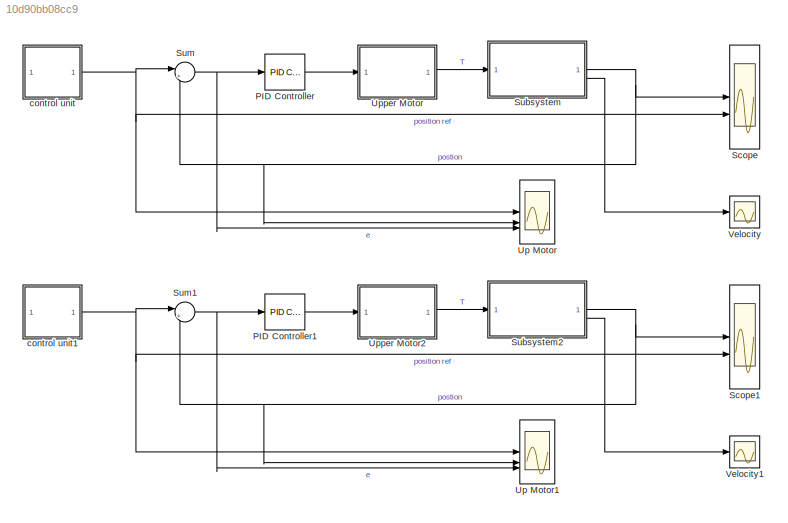
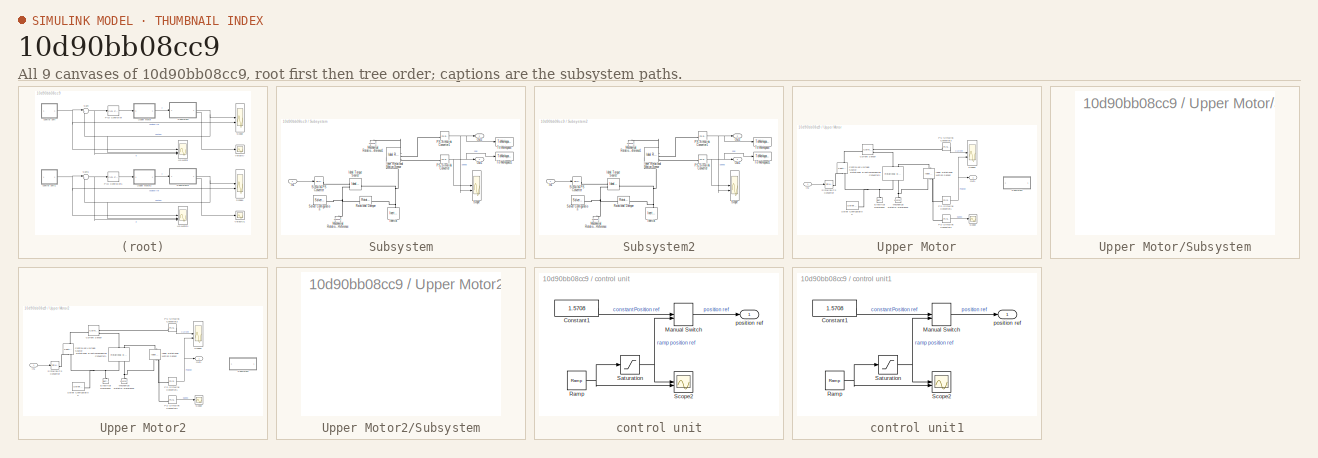
[diagram: thumbnail index - all 9 canvases of the model, root first then tree order]
MODEL slx_10d90bb08cc9
KIND model
CONFIG AbsTol = auto
CONFIG EnableMultiTasking = off
CONFIG FixedStep = auto
CONFIG MaxStep = auto
CONFIG MinStep = auto
CONFIG RelTol = 1e-3
CONFIG SampleTimeConstraint = Unconstrained
CONFIG SolverName = VariableStepAuto
CONFIG StartTime = 0.0
CONFIG StopTime = 27
BLOCK [Reference] PID Controller  REF=slpidlib/PID Controller
  SourceBlock = slpidlib/PID Controller
  SourceType = PID 1dof
BLOCK [Reference] PID Controller1  REF=slpidlib/PID Controller
  SourceBlock = slpidlib/PID Controller
  SourceType = PID 1dof
BLOCK [Scope] Scope
  Floating = off
  NumInputPorts = 2
  ScopeSpecificationString = Simulink.scopes.TimeScopeBlockCfg('CurrentConfiguration', extmgr.ConfigurationSet(extmgr.Configuration('Core','General UI',true),extmgr.Configuration('Core','Source UI',true),extmgr.Configuration('Sources','WiredSimulink',true,'DataLoggingVariableName','ScopeData1'),extmgr.Configuration('Visuals','Time Domain',true,'SerializedDisplays',{struct('MinYLimReal','-0.21635','MaxYLimReal','1.94711','YLab...<+1407ch>
BLOCK [Scope] Scope1
  Floating = off
  NumInputPorts = 2
  ScopeSpecificationString = Simulink.scopes.TimeScopeBlockCfg('CurrentConfiguration', extmgr.ConfigurationSet(extmgr.Configuration('Core','General UI',true),extmgr.Configuration('Core','Source UI',true),extmgr.Configuration('Sources','WiredSimulink',true,'DataLoggingVariableName','ScopeData1'),extmgr.Configuration('Visuals','Time Domain',true,'SerializedDisplays',{struct('MinYLimReal','-0.26968','MaxYLimReal','2.42708','YLab...<+1407ch>
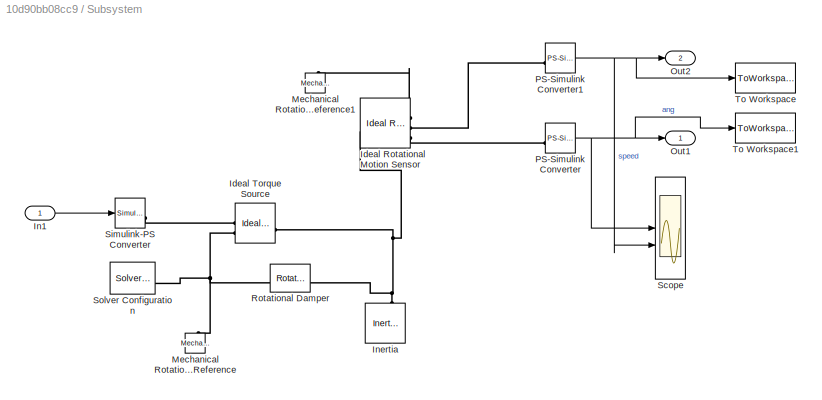
BLOCK [SubSystem] Subsystem
BLOCK [Reference] Subsystem/Ideal Rotational Motion Sensor  REF=fl_lib/Mechanical/Mechanical Sensors/Ideal Rotational
Motion Sensor
  SourceBlock = fl_lib/Mechanical/Mechanical Sensors/Ideal Rotational\nMotion Sensor
  SourceType = Ideal Rotational\nMotion Sensor
BLOCK [Reference] Subsystem/Ideal Torque Source  REF=fl_lib/Mechanical/Mechanical Sources/Ideal Torque Source
  SourceBlock = fl_lib/Mechanical/Mechanical Sources/Ideal Torque Source
  SourceType = Ideal Torque Source
BLOCK [Inport] Subsystem/In1
BLOCK [Reference] Subsystem/Inertia  REF=fl_lib/Mechanical/Rotational Elements/Inertia
  NameLocation = right
  SourceBlock = fl_lib/Mechanical/Rotational Elements/Inertia
  SourceType = Inertia
BLOCK [Reference] Subsystem/Mechanical Rotational Reference  REF=fl_lib/Mechanical/Rotational Elements/Mechanical
Rotational Reference
  NameLocation = right
  SourceBlock = fl_lib/Mechanical/Rotational Elements/Mechanical\nRotational Reference
  SourceType = Mechanical\nRotational Reference
BLOCK [Reference] Subsystem/Mechanical Rotational Reference1  REF=fl_lib/Mechanical/Rotational Elements/Mechanical
Rotational Reference
  NameLocation = right
  SourceBlock = fl_lib/Mechanical/Rotational Elements/Mechanical\nRotational Reference
  SourceType = Mechanical\nRotational Reference
BLOCK [Outport] Subsystem/Out1
  VectorParamsAs1DForOutWhenUnconnected = off
BLOCK [Outport] Subsystem/Out2
  Port = 2
  VectorParamsAs1DForOutWhenUnconnected = off
BLOCK [Reference] Subsystem/PS-Simulink Converter  REF=nesl_utility/PS-Simulink
Converter
  SourceBlock = nesl_utility/PS-Simulink\nConverter
  SourceType = PS-Simulink\nConverter
BLOCK [Reference] Subsystem/PS-Simulink Converter1  REF=nesl_utility/PS-Simulink
Converter
  SourceBlock = nesl_utility/PS-Simulink\nConverter
  SourceType = PS-Simulink\nConverter
BLOCK [Reference] Subsystem/Rotational Damper  REF=fl_lib/Mechanical/Rotational Elements/Rotational Damper
  SourceBlock = fl_lib/Mechanical/Rotational Elements/Rotational Damper
  SourceType = Rotational Damper
BLOCK [Scope] Subsystem/Scope
  Floating = off
  NumInputPorts = 2
  ScopeSpecificationString = Simulink.scopes.TimeScopeBlockCfg('CurrentConfiguration', extmgr.ConfigurationSet(extmgr.Configuration('Core','General UI',true),extmgr.Configuration('Core','Source UI',true),extmgr.Configuration('Sources','WiredSimulink',true),extmgr.Configuration('Visuals','Time Domain',true,'SerializedDisplays',{struct('MinYLimReal','-0.32852','MaxYLimReal','1.95957','YLabelReal','','MinYLimMag','0.00000','MaxY...<+1360ch>
BLOCK [Reference] Subsystem/Simulink-PS Converter  REF=nesl_utility/Simulink-PS
Converter
  SourceBlock = nesl_utility/Simulink-PS\nConverter
  SourceType = Simulink-PS\nConverter
BLOCK [Reference] Subsystem/Solver Configuration  REF=nesl_utility/Solver
Configuration
  SourceBlock = nesl_utility/Solver\nConfiguration
  SourceType = Solver\nConfiguration
BLOCK [ToWorkspace] Subsystem/To Workspace
  FixptAsFi = on
  MaxDataPoints = inf
  SampleTime = -1
  SaveFormat = Timeseries
  VariableName = vel1
BLOCK [ToWorkspace] Subsystem/To Workspace1
  FixptAsFi = on
  MaxDataPoints = inf
  SampleTime = -1
  SaveFormat = Timeseries
  VariableName = theta1
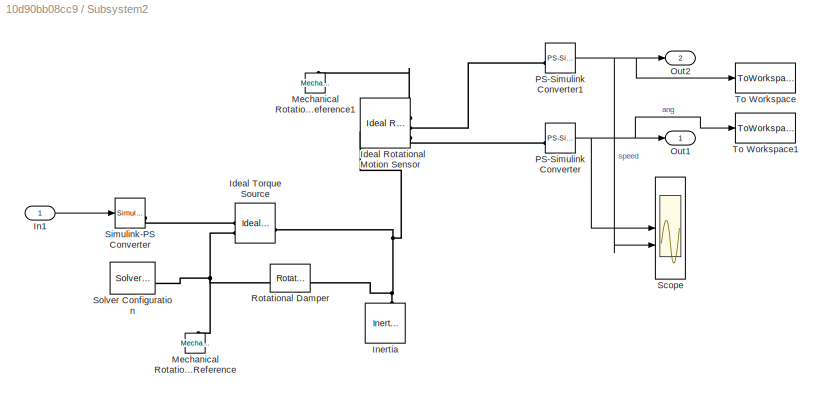
BLOCK [SubSystem] Subsystem2
BLOCK [Reference] Subsystem2/Ideal Rotational Motion Sensor  REF=fl_lib/Mechanical/Mechanical Sensors/Ideal Rotational
Motion Sensor
  SourceBlock = fl_lib/Mechanical/Mechanical Sensors/Ideal Rotational\nMotion Sensor
  SourceType = Ideal Rotational\nMotion Sensor
BLOCK [Reference] Subsystem2/Ideal Torque Source  REF=fl_lib/Mechanical/Mechanical Sources/Ideal Torque Source
  SourceBlock = fl_lib/Mechanical/Mechanical Sources/Ideal Torque Source
  SourceType = Ideal Torque Source
BLOCK [Inport] Subsystem2/In1
BLOCK [Reference] Subsystem2/Inertia  REF=fl_lib/Mechanical/Rotational Elements/Inertia
  NameLocation = right
  SourceBlock = fl_lib/Mechanical/Rotational Elements/Inertia
  SourceType = Inertia
BLOCK [Reference] Subsystem2/Mechanical Rotational Reference  REF=fl_lib/Mechanical/Rotational Elements/Mechanical
Rotational Reference
  NameLocation = right
  SourceBlock = fl_lib/Mechanical/Rotational Elements/Mechanical\nRotational Reference
  SourceType = Mechanical\nRotational Reference
BLOCK [Reference] Subsystem2/Mechanical Rotational Reference1  REF=fl_lib/Mechanical/Rotational Elements/Mechanical
Rotational Reference
  NameLocation = right
  SourceBlock = fl_lib/Mechanical/Rotational Elements/Mechanical\nRotational Reference
  SourceType = Mechanical\nRotational Reference
BLOCK [Outport] Subsystem2/Out1
  VectorParamsAs1DForOutWhenUnconnected = off
BLOCK [Outport] Subsystem2/Out2
  Port = 2
  VectorParamsAs1DForOutWhenUnconnected = off
BLOCK [Reference] Subsystem2/PS-Simulink Converter  REF=nesl_utility/PS-Simulink
Converter
  SourceBlock = nesl_utility/PS-Simulink\nConverter
  SourceType = PS-Simulink\nConverter
BLOCK [Reference] Subsystem2/PS-Simulink Converter1  REF=nesl_utility/PS-Simulink
Converter
  SourceBlock = nesl_utility/PS-Simulink\nConverter
  SourceType = PS-Simulink\nConverter
BLOCK [Reference] Subsystem2/Rotational Damper  REF=fl_lib/Mechanical/Rotational Elements/Rotational Damper
  SourceBlock = fl_lib/Mechanical/Rotational Elements/Rotational Damper
  SourceType = Rotational Damper
BLOCK [Scope] Subsystem2/Scope
  Floating = off
  NumInputPorts = 2
  ScopeSpecificationString = Simulink.scopes.TimeScopeBlockCfg('CurrentConfiguration', extmgr.ConfigurationSet(extmgr.Configuration('Core','General UI',true),extmgr.Configuration('Core','Source UI',true),extmgr.Configuration('Sources','WiredSimulink',true),extmgr.Configuration('Visuals','Time Domain',true,'SerializedDisplays',{struct('MinYLimReal','-0.26455','MaxYLimReal','1.98734','YLabelReal','','MinYLimMag','0.00000','MaxY...<+1361ch>
BLOCK [Reference] Subsystem2/Simulink-PS Converter  REF=nesl_utility/Simulink-PS
Converter
  SourceBlock = nesl_utility/Simulink-PS\nConverter
  SourceType = Simulink-PS\nConverter
BLOCK [Reference] Subsystem2/Solver Configuration  REF=nesl_utility/Solver
Configuration
  SourceBlock = nesl_utility/Solver\nConfiguration
  SourceType = Solver\nConfiguration
BLOCK [ToWorkspace] Subsystem2/To Workspace
  FixptAsFi = on
  MaxDataPoints = inf
  SampleTime = -1
  SaveFormat = Timeseries
  VariableName = vel2
BLOCK [ToWorkspace] Subsystem2/To Workspace1
  FixptAsFi = on
  MaxDataPoints = inf
  SampleTime = -1
  SaveFormat = Timeseries
  VariableName = theta2
BLOCK [Sum] Sum
  Inputs = |+-
BLOCK [Sum] Sum1
  Inputs = |+-
BLOCK [Scope] Up Motor
  Floating = off
  NumInputPorts = 3
  ScopeSpecificationString = Simulink.scopes.TimeScopeBlockCfg('CurrentConfiguration', extmgr.ConfigurationSet(extmgr.Configuration('Core','General UI',true),extmgr.Configuration('Core','Source UI',true),extmgr.Configuration('Sources','WiredSimulink',true,'DataLoggingVariableName','ScopeData2'),extmgr.Configuration('Visuals','Time Domain',true,'SerializedDisplays',{struct('MinYLimReal','-0.79533','MaxYLimReal','2.36613','YLab...<+1411ch>
BLOCK [Scope] Up Motor1
  Floating = off
  NumInputPorts = 3
  ScopeSpecificationString = Simulink.scopes.TimeScopeBlockCfg('CurrentConfiguration', extmgr.ConfigurationSet(extmgr.Configuration('Core','General UI',true),extmgr.Configuration('Core','Source UI',true),extmgr.Configuration('Sources','WiredSimulink',true,'DataLoggingVariableName','ScopeData2'),extmgr.Configuration('Visuals','Time Domain',true,'SerializedDisplays',{struct('MinYLimReal','-0.9296','MaxYLimReal','2.5004','YLabel...<+1405ch>
BLOCK [SubSystem] Upper Motor
BLOCK [Reference] Upper Motor/Controlled Voltage Source  REF=fl_lib/Electrical/Electrical Sources/Controlled Voltage
Source
  NameLocation = right
  SourceBlock = fl_lib/Electrical/Electrical Sources/Controlled Voltage\nSource
  SourceType = Controlled Voltage\nSource
BLOCK [Reference] Upper Motor/Current Sensor  REF=fl_lib/Electrical/Electrical Sensors/Current Sensor
  SourceBlock = fl_lib/Electrical/Electrical Sensors/Current Sensor
  SourceType = Current Sensor
BLOCK [Reference] Upper Motor/Electrical Reference  REF=fl_lib/Electrical/Electrical Elements/Electrical Reference
  NameLocation = right
  SourceBlock = fl_lib/Electrical/Electrical Elements/Electrical Reference
  SourceType = Electrical Reference
BLOCK [Reference] Upper Motor/Ideal Rotational Motion Sensor  REF=fl_lib/Mechanical/Mechanical Sensors/Ideal Rotational
Motion Sensor
  NameLocation = left
  SourceBlock = fl_lib/Mechanical/Mechanical Sensors/Ideal Rotational\nMotion Sensor
  SourceType = Ideal Rotational\nMotion Sensor
BLOCK [Inport] Upper Motor/In1
BLOCK [Reference] Upper Motor/Mechanical Rotational Reference  REF=fl_lib/Mechanical/Rotational Elements/Mechanical
Rotational Reference
  NameLocation = right
  SourceBlock = fl_lib/Mechanical/Rotational Elements/Mechanical\nRotational Reference
  SourceType = Mechanical\nRotational Reference
BLOCK [Outport] Upper Motor/Out1
  VectorParamsAs1DForOutWhenUnconnected = off
BLOCK [Reference] Upper Motor/PS-Simulink Converter1  REF=nesl_utility/PS-Simulink
Converter
  SourceBlock = nesl_utility/PS-Simulink\nConverter
  SourceType = PS-Simulink\nConverter
BLOCK [Reference] Upper Motor/PS-Simulink Converter2  REF=nesl_utility/PS-Simulink
Converter
  SourceBlock = nesl_utility/PS-Simulink\nConverter
  SourceType = PS-Simulink\nConverter
BLOCK [Reference] Upper Motor/PS-Simulink Converter3  REF=nesl_utility/PS-Simulink
Converter
  SourceBlock = nesl_utility/PS-Simulink\nConverter
  SourceType = PS-Simulink\nConverter
BLOCK [Reference] Upper Motor/Rotational Electromechanical Converter1  REF=fl_lib/Electrical/Electrical Elements/Rotational
Electromechanical
Converter
  NameLocation = right
  SourceBlock = fl_lib/Electrical/Electrical Elements/Rotational\nElectromechanical\nConverter
  SourceType = Rotational\nElectromechanical\nConverter
BLOCK [Scope] Upper Motor/Scope
  Floating = off
  NumInputPorts = 1
  ScopeSpecificationString = Simulink.scopes.TimeScopeBlockCfg('CurrentConfiguration', extmgr.ConfigurationSet(extmgr.Configuration('Core','General UI',true),extmgr.Configuration('Core','Source UI',true),extmgr.Configuration('Sources','WiredSimulink',true,'DataLoggingVariableName','ScopeData1'),extmgr.Configuration('Visuals','Time Domain',true,'SerializedDisplays',{struct('MinYLimReal','-3090.84958','MaxYLimReal','26337.95028...<+1390ch>
BLOCK [Scope] Upper Motor/Scope2
  Floating = off
  NumInputPorts = 2
  ScopeSpecificationString = Simulink.scopes.TimeScopeBlockCfg('CurrentConfiguration', extmgr.ConfigurationSet(extmgr.Configuration('Core','General UI',true),extmgr.Configuration('Core','Source UI',true),extmgr.Configuration('Sources','WiredSimulink',true,'DataLoggingVariableName','ScopeData2'),extmgr.Configuration('Visuals','Time Domain',true,'SerializedDisplays',{struct('MinYLimReal','-78.78746','MaxYLimReal','166.13849','Y...<+1414ch>
BLOCK [Reference] Upper Motor/Simulink-PS Converter  REF=nesl_utility/Simulink-PS
Converter
  SourceBlock = nesl_utility/Simulink-PS\nConverter
  SourceType = Simulink-PS\nConverter
BLOCK [Reference] Upper Motor/Solver Configuration  REF=nesl_utility/Solver
Configuration
  SourceBlock = nesl_utility/Solver\nConfiguration
  SourceType = Solver\nConfiguration
BLOCK [SubSystem] Upper Motor/Subsystem
  OpenFcn = open_system('simscape')
  ShowPortLabels = none
BLOCK [SubSystem] Upper Motor2
BLOCK [Reference] Upper Motor2/Controlled Voltage Source  REF=fl_lib/Electrical/Electrical Sources/Controlled Voltage
Source
  NameLocation = right
  SourceBlock = fl_lib/Electrical/Electrical Sources/Controlled Voltage\nSource
  SourceType = Controlled Voltage\nSource
BLOCK [Reference] Upper Motor2/Current Sensor  REF=fl_lib/Electrical/Electrical Sensors/Current Sensor
  SourceBlock = fl_lib/Electrical/Electrical Sensors/Current Sensor
  SourceType = Current Sensor
BLOCK [Reference] Upper Motor2/Electrical Reference  REF=fl_lib/Electrical/Electrical Elements/Electrical Reference
  NameLocation = right
  SourceBlock = fl_lib/Electrical/Electrical Elements/Electrical Reference
  SourceType = Electrical Reference
BLOCK [Reference] Upper Motor2/Ideal Rotational Motion Sensor  REF=fl_lib/Mechanical/Mechanical Sensors/Ideal Rotational
Motion Sensor
  NameLocation = left
  SourceBlock = fl_lib/Mechanical/Mechanical Sensors/Ideal Rotational\nMotion Sensor
  SourceType = Ideal Rotational\nMotion Sensor
BLOCK [Inport] Upper Motor2/In1
BLOCK [Reference] Upper Motor2/Mechanical Rotational Reference  REF=fl_lib/Mechanical/Rotational Elements/Mechanical
Rotational Reference
  NameLocation = right
  SourceBlock = fl_lib/Mechanical/Rotational Elements/Mechanical\nRotational Reference
  SourceType = Mechanical\nRotational Reference
BLOCK [Outport] Upper Motor2/Out1
  VectorParamsAs1DForOutWhenUnconnected = off
BLOCK [Reference] Upper Motor2/PS-Simulink Converter1  REF=nesl_utility/PS-Simulink
Converter
  SourceBlock = nesl_utility/PS-Simulink\nConverter
  SourceType = PS-Simulink\nConverter
BLOCK [Reference] Upper Motor2/PS-Simulink Converter2  REF=nesl_utility/PS-Simulink
Converter
  SourceBlock = nesl_utility/PS-Simulink\nConverter
  SourceType = PS-Simulink\nConverter
BLOCK [Reference] Upper Motor2/PS-Simulink Converter3  REF=nesl_utility/PS-Simulink
Converter
  SourceBlock = nesl_utility/PS-Simulink\nConverter
  SourceType = PS-Simulink\nConverter
BLOCK [Reference] Upper Motor2/Rotational Electromechanical Converter1  REF=fl_lib/Electrical/Electrical Elements/Rotational
Electromechanical
Converter
  NameLocation = right
  SourceBlock = fl_lib/Electrical/Electrical Elements/Rotational\nElectromechanical\nConverter
  SourceType = Rotational\nElectromechanical\nConverter
BLOCK [Scope] Upper Motor2/Scope
  Floating = off
  NumInputPorts = 1
  ScopeSpecificationString = Simulink.scopes.TimeScopeBlockCfg('CurrentConfiguration', extmgr.ConfigurationSet(extmgr.Configuration('Core','General UI',true),extmgr.Configuration('Core','Source UI',true),extmgr.Configuration('Sources','WiredSimulink',true,'DataLoggingVariableName','ScopeData1'),extmgr.Configuration('Visuals','Time Domain',true,'SerializedDisplays',{struct('MinYLimReal','-3090.84958','MaxYLimReal','26337.95028...<+1390ch>
BLOCK [Scope] Upper Motor2/Scope2
  Floating = off
  NumInputPorts = 2
  ScopeSpecificationString = Simulink.scopes.TimeScopeBlockCfg('CurrentConfiguration', extmgr.ConfigurationSet(extmgr.Configuration('Core','General UI',true),extmgr.Configuration('Core','Source UI',true),extmgr.Configuration('Sources','WiredSimulink',true,'DataLoggingVariableName','ScopeData2'),extmgr.Configuration('Visuals','Time Domain',true,'SerializedDisplays',{struct('MinYLimReal','-78.78746','MaxYLimReal','166.13849','Y...<+1414ch>
BLOCK [Reference] Upper Motor2/Simulink-PS Converter  REF=nesl_utility/Simulink-PS
Converter
  SourceBlock = nesl_utility/Simulink-PS\nConverter
  SourceType = Simulink-PS\nConverter
BLOCK [Reference] Upper Motor2/Solver Configuration  REF=nesl_utility/Solver
Configuration
  SourceBlock = nesl_utility/Solver\nConfiguration
  SourceType = Solver\nConfiguration
BLOCK [SubSystem] Upper Motor2/Subsystem
  OpenFcn = open_system('simscape')
  ShowPortLabels = none
BLOCK [Scope] Velocity
  Floating = off
  NumInputPorts = 1
  ScopeSpecificationString = Simulink.scopes.TimeScopeBlockCfg('CurrentConfiguration', extmgr.ConfigurationSet(extmgr.Configuration('Core','General UI',true),extmgr.Configuration('Core','Source UI',true),extmgr.Configuration('Sources','WiredSimulink',true,'DataLoggingVariableName','ScopeData3'),extmgr.Configuration('Visuals','Time Domain',true,'SerializedDisplays',{struct('MinYLimReal','-0.00879','MaxYLimReal','0.02298','YLab...<+1374ch>
BLOCK [Scope] Velocity1
  Floating = off
  NumInputPorts = 1
  ScopeSpecificationString = Simulink.scopes.TimeScopeBlockCfg('CurrentConfiguration', extmgr.ConfigurationSet(extmgr.Configuration('Core','General UI',true),extmgr.Configuration('Core','Source UI',true),extmgr.Configuration('Sources','WiredSimulink',true,'DataLoggingVariableName','ScopeData3'),extmgr.Configuration('Visuals','Time Domain',true,'SerializedDisplays',{struct('MinYLimReal','-0.00879','MaxYLimReal','0.02298','YLab...<+1374ch>
BLOCK [SubSystem] control unit
BLOCK [Constant] control unit/Constant1
  Value = 1.5708
BLOCK [ManualSwitch] control unit/Manual Switch
BLOCK [Reference] control unit/Ramp  REF=simulink/Sources/Ramp
  SourceBlock = simulink/Sources/Ramp
  SourceType = Ramp
BLOCK [Saturate] control unit/Saturation
  LowerLimit = 0.5
  UpperLimit = 1.5
BLOCK [Scope] control unit/Scope2
  Floating = off
  NumInputPorts = 2
  ScopeSpecificationString = Simulink.scopes.TimeScopeBlockCfg('CurrentConfiguration', extmgr.ConfigurationSet(extmgr.Configuration('Core','General UI',true),extmgr.Configuration('Core','Source UI',true),extmgr.Configuration('Sources','WiredSimulink',true,'DataLoggingVariableName','ScopeData1'),extmgr.Configuration('Visuals','Time Domain',true,'SerializedDisplays',{struct('MinYLimReal','-1.21875','MaxYLimReal','10.96875','YLa...<+1459ch>
BLOCK [Outport] control unit/position ref
  VectorParamsAs1DForOutWhenUnconnected = off
BLOCK [SubSystem] control unit1
BLOCK [Constant] control unit1/Constant1
  Value = 1.5708
BLOCK [ManualSwitch] control unit1/Manual Switch
BLOCK [Reference] control unit1/Ramp  REF=simulink/Sources/Ramp
  SourceBlock = simulink/Sources/Ramp
  SourceType = Ramp
BLOCK [Saturate] control unit1/Saturation
  LowerLimit = 0.5
  UpperLimit = 1.5
BLOCK [Scope] control unit1/Scope2
  Floating = off
  NumInputPorts = 2
  ScopeSpecificationString = Simulink.scopes.TimeScopeBlockCfg('CurrentConfiguration', extmgr.ConfigurationSet(extmgr.Configuration('Core','General UI',true),extmgr.Configuration('Core','Source UI',true),extmgr.Configuration('Sources','WiredSimulink',true,'DataLoggingVariableName','ScopeData1'),extmgr.Configuration('Visuals','Time Domain',true,'SerializedDisplays',{struct('MinYLimReal','-1.21875','MaxYLimReal','10.96875','YLa...<+1459ch>
BLOCK [Outport] control unit1/position ref
  VectorParamsAs1DForOutWhenUnconnected = off
LINE PID Controller1:1 -> Upper Motor2:1
LINE PID Controller:1 -> Upper Motor:1
LINE Subsystem/In1:1 -> Subsystem/Simulink-PS Converter:1
NET Subsystem/PS-Simulink Converter1:1 -> Subsystem/Out2:1, Subsystem/Scope:2, Subsystem/To Workspace:1
NET Subsystem/PS-Simulink Converter:1 -> Subsystem/Out1:1, Subsystem/Scope:1, Subsystem/To Workspace1:1
LINE Subsystem2/In1:1 -> Subsystem2/Simulink-PS Converter:1
NET Subsystem2/PS-Simulink Converter1:1 -> Subsystem2/Out2:1, Subsystem2/Scope:2, Subsystem2/To Workspace:1
NET Subsystem2/PS-Simulink Converter:1 -> Subsystem2/Out1:1, Subsystem2/Scope:1, Subsystem2/To Workspace1:1
NET Subsystem2:1 -> Scope1:1, Sum1:2, Up Motor1:2
LINE Subsystem2:2 -> Velocity1:1
NET Subsystem:1 -> Scope:1, Sum:2, Up Motor:2
LINE Subsystem:2 -> Velocity:1
NET Sum1:1 -> PID Controller1:1, Up Motor1:3
NET Sum:1 -> PID Controller:1, Up Motor:3
LINE Upper Motor/In1:1 -> Upper Motor/Simulink-PS Converter:1
NET Upper Motor/PS-Simulink Converter1:1 -> Upper Motor/Out1:1, Upper Motor/Scope2:2
LINE Upper Motor/PS-Simulink Converter2:1 -> Upper Motor/Scope:1
LINE Upper Motor/PS-Simulink Converter3:1 -> Upper Motor/Scope2:1
LINE Upper Motor2/In1:1 -> Upper Motor2/Simulink-PS Converter:1
NET Upper Motor2/PS-Simulink Converter1:1 -> Upper Motor2/Out1:1, Upper Motor2/Scope2:2
LINE Upper Motor2/PS-Simulink Converter2:1 -> Upper Motor2/Scope:1
LINE Upper Motor2/PS-Simulink Converter3:1 -> Upper Motor2/Scope2:1
LINE Upper Motor2:1 -> Subsystem2:1
LINE Upper Motor:1 -> Subsystem:1
LINE control unit/Constant1:1 -> control unit/Manual Switch:1
LINE control unit/Manual Switch:1 -> control unit/position ref:1
NET control unit/Ramp:1 -> control unit/Saturation:1, control unit/Scope2:2
NET control unit/Saturation:1 -> control unit/Manual Switch:2, control unit/Scope2:1
LINE control unit1/Constant1:1 -> control unit1/Manual Switch:1
LINE control unit1/Manual Switch:1 -> control unit1/position ref:1
NET control unit1/Ramp:1 -> control unit1/Saturation:1, control unit1/Scope2:2
NET control unit1/Saturation:1 -> control unit1/Manual Switch:2, control unit1/Scope2:1
NET control unit1:1 -> Scope1:2, Sum1:1, Up Motor1:1
NET control unit:1 -> Scope:2, Sum:1, Up Motor:1
PNET net1: Subsystem/Ideal Rotational Motion Sensor:LConn1 -- Subsystem/Ideal Torque Source:LConn1 -- Subsystem/Inertia:LConn1 -- Subsystem/Rotational Damper:RConn1
PLINE Subsystem/Ideal Rotational Motion Sensor:RConn1 -- Subsystem/Mechanical Rotational Reference1:LConn1
PLINE Subsystem/Ideal Rotational Motion Sensor:RConn2 -- Subsystem/PS-Simulink Converter1:LConn1
PLINE Subsystem/Ideal Rotational Motion Sensor:RConn3 -- Subsystem/PS-Simulink Converter:LConn1
PLINE Subsystem/Ideal Torque Source:RConn1 -- Subsystem/Simulink-PS Converter:RConn1
PNET net2: Subsystem/Ideal Torque Source:RConn2 -- Subsystem/Mechanical Rotational Reference:LConn1 -- Subsystem/Rotational Damper:LConn1 -- Subsystem/Solver Configuration:RConn1
PNET net3: Subsystem2/Ideal Rotational Motion Sensor:LConn1 -- Subsystem2/Ideal Torque Source:LConn1 -- Subsystem2/Inertia:LConn1 -- Subsystem2/Rotational Damper:RConn1
PLINE Subsystem2/Ideal Rotational Motion Sensor:RConn1 -- Subsystem2/Mechanical Rotational Reference1:LConn1
PLINE Subsystem2/Ideal Rotational Motion Sensor:RConn2 -- Subsystem2/PS-Simulink Converter1:LConn1
PLINE Subsystem2/Ideal Rotational Motion Sensor:RConn3 -- Subsystem2/PS-Simulink Converter:LConn1
PLINE Subsystem2/Ideal Torque Source:RConn1 -- Subsystem2/Simulink-PS Converter:RConn1
PNET net4: Subsystem2/Ideal Torque Source:RConn2 -- Subsystem2/Mechanical Rotational Reference:LConn1 -- Subsystem2/Rotational Damper:LConn1 -- Subsystem2/Solver Configuration:RConn1
PLINE Upper Motor/Controlled Voltage Source:LConn1 -- Upper Motor/Current Sensor:LConn1
PLINE Upper Motor/Controlled Voltage Source:RConn1 -- Upper Motor/Simulink-PS Converter:RConn1
PNET net5: Upper Motor/Controlled Voltage Source:RConn2 -- Upper Motor/Electrical Reference:LConn1 -- Upper Motor/Rotational Electromechanical Converter1:RConn1 -- Upper Motor/Solver Configuration:RConn1
PLINE Upper Motor/Current Sensor:RConn1 -- Upper Motor/PS-Simulink Converter3:LConn1
PLINE Upper Motor/Current Sensor:RConn2 -- Upper Motor/Rotational Electromechanical Converter1:LConn1
PLINE Upper Motor/Ideal Rotational Motion Sensor:LConn1 -- Upper Motor/Rotational Electromechanical Converter1:LConn2
PNET net6: Upper Motor/Ideal Rotational Motion Sensor:RConn1 -- Upper Motor/Mechanical Rotational Reference:LConn1 -- Upper Motor/Rotational Electromechanical Converter1:RConn2
PLINE Upper Motor/Ideal Rotational Motion Sensor:RConn2 -- Upper Motor/PS-Simulink Converter2:LConn1
PLINE Upper Motor/Ideal Rotational Motion Sensor:RConn3 -- Upper Motor/PS-Simulink Converter1:LConn1
PLINE Upper Motor2/Controlled Voltage Source:LConn1 -- Upper Motor2/Current Sensor:LConn1
PLINE Upper Motor2/Controlled Voltage Source:RConn1 -- Upper Motor2/Simulink-PS Converter:RConn1
PNET net7: Upper Motor2/Controlled Voltage Source:RConn2 -- Upper Motor2/Electrical Reference:LConn1 -- Upper Motor2/Rotational Electromechanical Converter1:RConn1 -- Upper Motor2/Solver Configuration:RConn1
PLINE Upper Motor2/Current Sensor:RConn1 -- Upper Motor2/PS-Simulink Converter3:LConn1
PLINE Upper Motor2/Current Sensor:RConn2 -- Upper Motor2/Rotational Electromechanical Converter1:LConn1
PLINE Upper Motor2/Ideal Rotational Motion Sensor:LConn1 -- Upper Motor2/Rotational Electromechanical Converter1:LConn2
PNET net8: Upper Motor2/Ideal Rotational Motion Sensor:RConn1 -- Upper Motor2/Mechanical Rotational Reference:LConn1 -- Upper Motor2/Rotational Electromechanical Converter1:RConn2
PLINE Upper Motor2/Ideal Rotational Motion Sensor:RConn2 -- Upper Motor2/PS-Simulink Converter2:LConn1
PLINE Upper Motor2/Ideal Rotational Motion Sensor:RConn3 -- Upper Motor2/PS-Simulink Converter1:LConn1
note: NET lines group one-source signal fan-out (src -> all destinations, sorted); 1:1 wires keep LINE; PNET lines group multi-terminal physical nets as a canonical sorted terminal list (undirected conserving connections); 2-terminal nets keep the pairwise PLINE form
